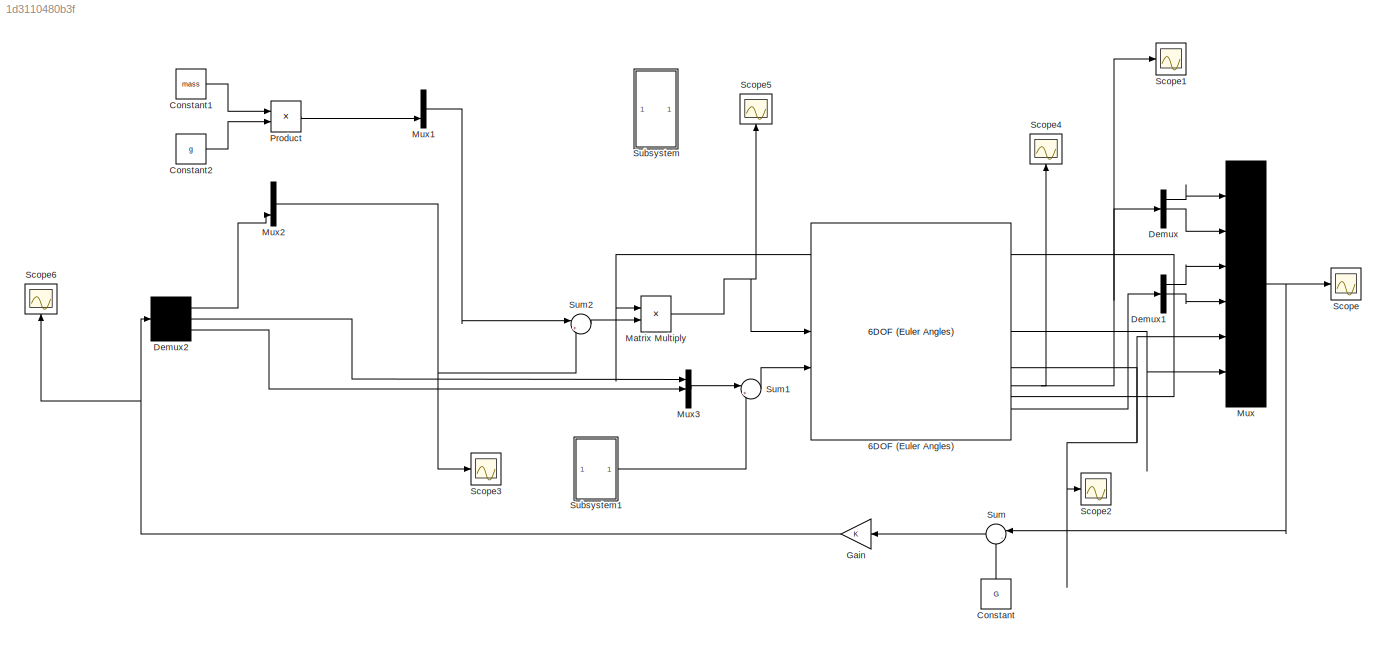
MODEL slx_1d3110480b3f
KIND model
CONFIG AbsTol = auto
CONFIG EnableMultiTasking = off
CONFIG FixedStep = auto
CONFIG MaxStep = auto
CONFIG MinStep = auto
CONFIG RelTol = 1e-3
CONFIG SampleTimeConstraint = Unconstrained
CONFIG SolverName = VariableStepAuto
CONFIG StartTime = 0.0
CONFIG StopTime = 60
BLOCK [Reference] 6DOF (Euler Angles)  REF=shared6dof/6DOF (Euler Angles)
  LibrarySourceBlock = aerolib6dof2/6DOF (Euler Angles)
  SourceBlock = shared6dof/6DOF (Euler Angles)
  SourceType = 6DOF EoM (Body Axis)
BLOCK [Constant] Constant
  NameLocation = right
  Value = G
BLOCK [Constant] Constant1
  Value = mass
BLOCK [Constant] Constant2
  Value = g
BLOCK [Demux] Demux
  Outputs = 3
BLOCK [Demux] Demux1
  Outputs = 3
BLOCK [Demux] Demux2
  Outputs = 3
BLOCK [Gain] Gain
  Gain = K
  Multiplication = Matrix(K*u)
  NameLocation = top
BLOCK [Product] Matrix Multiply
  Multiplication = Matrix(*)
BLOCK [Mux] Mux
  DisplayOption = bar
  Inputs = 6
BLOCK [Mux] Mux1
  DisplayOption = bar
  Inputs = 3
BLOCK [Mux] Mux2
  DisplayOption = bar
  Inputs = 3
BLOCK [Mux] Mux3
  DisplayOption = bar
  Inputs = 3
BLOCK [Product] Product
BLOCK [Scope] Scope
  Floating = off
  NumInputPorts = 1
  ScopeSpecificationString = Simulink.scopes.TimeScopeBlockCfg('CurrentConfiguration', extmgr.ConfigurationSet(extmgr.Configuration('Core','General UI',true),extmgr.Configuration('Core','Source UI',true),extmgr.Configuration('Sources','WiredSimulink',true),extmgr.Configuration('Visuals','Time Domain',true,'SerializedDisplays',{struct('MinYLimReal','-1.88035','MaxYLimReal','2.11769','YLabelReal','','MinYLimMag','0.00000','MaxY...<+1802ch>
BLOCK [Scope] Scope1
  Floating = off
  NumInputPorts = 1
  ScopeSpecificationString = Simulink.scopes.TimeScopeBlockCfg('CurrentConfiguration', extmgr.ConfigurationSet(extmgr.Configuration('Core','General UI',true),extmgr.Configuration('Core','Source UI',true),extmgr.Configuration('Sources','WiredSimulink',true,'DataLoggingVariableName','ScopeData1'),extmgr.Configuration('Visuals','Time Domain',true,'SerializedDisplays',{struct('MinYLimReal','-0.10563','MaxYLimReal','0.13734','YLab...<+1556ch>
BLOCK [Scope] Scope2
  Floating = off
  NumInputPorts = 1
  ScopeSpecificationString = Simulink.scopes.TimeScopeBlockCfg('CurrentConfiguration', extmgr.ConfigurationSet(extmgr.Configuration('Core','General UI',true),extmgr.Configuration('Core','Source UI',true),extmgr.Configuration('Sources','WiredSimulink',true,'DataLoggingVariableName','ScopeData1'),extmgr.Configuration('Visuals','Time Domain',true,'SerializedDisplays',{struct('MinYLimReal','-1.25','MaxYLimReal','11.25','YLabelRea...<+1560ch>
BLOCK [Scope] Scope3
  Floating = off
  NumInputPorts = 1
  ScopeSpecificationString = Simulink.scopes.TimeScopeBlockCfg('CurrentConfiguration', extmgr.ConfigurationSet(extmgr.Configuration('Core','General UI',true),extmgr.Configuration('Core','Source UI',true),extmgr.Configuration('Sources','WiredSimulink',true,'DataLoggingVariableName','ScopeData2'),extmgr.Configuration('Visuals','Time Domain',true,'SerializedDisplays',{struct('MinYLimReal','-0.90776','MaxYLimReal','8.16984','YLab...<+1466ch>
BLOCK [Scope] Scope4
  Floating = off
  NameLocation = right
  NumInputPorts = 1
  ScopeSpecificationString = Simulink.scopes.TimeScopeBlockCfg('CurrentConfiguration', extmgr.ConfigurationSet(extmgr.Configuration('Core','General UI',true),extmgr.Configuration('Core','Source UI',true),extmgr.Configuration('Sources','WiredSimulink',true,'DataLoggingVariableName','ScopeData3'),extmgr.Configuration('Visuals','Time Domain',true,'SerializedDisplays',{struct('MinYLimReal','-0.10563','MaxYLimReal','0.13734','YLab...<+1532ch>
BLOCK [Scope] Scope5
  Floating = off
  NameLocation = right
  NumInputPorts = 1
  ScopeSpecificationString = Simulink.scopes.TimeScopeBlockCfg('CurrentConfiguration', extmgr.ConfigurationSet(extmgr.Configuration('Core','General UI',true),extmgr.Configuration('Core','Source UI',true),extmgr.Configuration('Sources','WiredSimulink',true,'DataLoggingVariableName','ScopeData4'),extmgr.Configuration('Visuals','Time Domain',true,'SerializedDisplays',{struct('MinYLimReal','-0.00922','MaxYLimReal','0.00346','YLab...<+1464ch>
BLOCK [Scope] Scope6
  Floating = off
  NameLocation = right
  NumInputPorts = 1
  ScopeSpecificationString = Simulink.scopes.TimeScopeBlockCfg('CurrentConfiguration', extmgr.ConfigurationSet(extmgr.Configuration('Core','General UI',true),extmgr.Configuration('Core','Source UI',true),extmgr.Configuration('Sources','WiredSimulink',true,'DataLoggingVariableName','ScopeData5'),extmgr.Configuration('Visuals','Time Domain',true,'SerializedDisplays',{struct('MinYLimReal','-8.12187','MaxYLimReal','2.73576','YLab...<+1437ch>
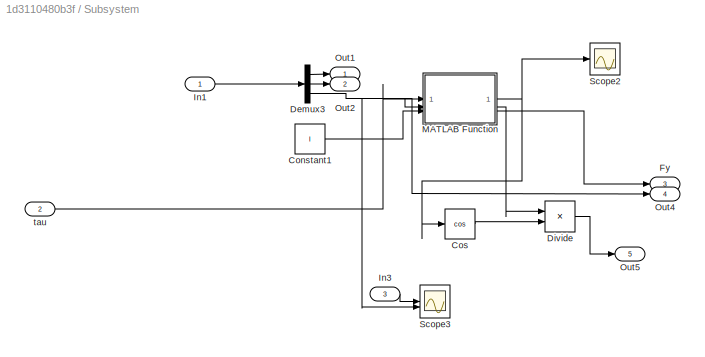
BLOCK [SubSystem] Subsystem
BLOCK [Constant] Subsystem/Constant1
  Value = l
BLOCK [Trigonometry] Subsystem/Cos
  Operator = cos
BLOCK [Demux] Subsystem/Demux3
  Outputs = 3
BLOCK [Product] Subsystem/Divide
  Inputs = */
BLOCK [Outport] Subsystem/Fy
  Port = 3
BLOCK [Inport] Subsystem/In1
BLOCK [Inport] Subsystem/In3
  Port = 3
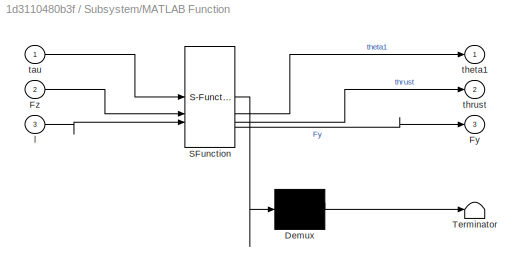
BLOCK [SubSystem] Subsystem/MATLAB Function
  ErrorFcn = Stateflow.Translate.translate
  PermitHierarchicalResolution = ExplicitOnly
  SFBlockType = MATLAB Function
  TreatAsAtomicUnit = on
BLOCK [Demux] Subsystem/MATLAB Function/ Demux 
  Outputs = 1
BLOCK [S-Function] Subsystem/MATLAB Function/ SFunction 
  EnableBusSupport = on
  FunctionName = sf_sfun
  PortCounts = [3 4]
  SFcnIsStateOwnerBlock = off
  SFunctionDeploymentMode = off
  Tag = Stateflow S-Function 2
BLOCK [Terminator] Subsystem/MATLAB Function/ Terminator 
BLOCK [Outport] Subsystem/MATLAB Function/Fy
  Port = 3
BLOCK [Inport] Subsystem/MATLAB Function/Fz
  Port = 2
BLOCK [Inport] Subsystem/MATLAB Function/l
  Port = 3
BLOCK [Inport] Subsystem/MATLAB Function/tau
BLOCK [Outport] Subsystem/MATLAB Function/theta1
BLOCK [Outport] Subsystem/MATLAB Function/thrust
  Port = 2
BLOCK [Outport] Subsystem/Out1
BLOCK [Outport] Subsystem/Out2
  Port = 2
BLOCK [Outport] Subsystem/Out4
  Port = 4
BLOCK [Outport] Subsystem/Out5
  Port = 5
BLOCK [Scope] Subsystem/Scope2
  Floating = off
  NumInputPorts = 1
  ScopeSpecificationString = Simulink.scopes.TimeScopeBlockCfg('CurrentConfiguration', extmgr.ConfigurationSet(extmgr.Configuration('Core','General UI',true),extmgr.Configuration('Core','Source UI',true),extmgr.Configuration('Sources','WiredSimulink',true,'DataLoggingVariableName','ScopeData1'),extmgr.Configuration('Visuals','Time Domain',true,'SerializedDisplays',{struct('MinYLimReal','-1.50725','MaxYLimReal','-1.48115','YLa...<+1412ch>
BLOCK [Scope] Subsystem/Scope3
  Floating = off
  NumInputPorts = 2
  ScopeSpecificationString = Simulink.scopes.TimeScopeBlockCfg('CurrentConfiguration', extmgr.ConfigurationSet(extmgr.Configuration('Core','General UI',true),extmgr.Configuration('Core','Source UI',true),extmgr.Configuration('Sources','WiredSimulink',true,'DataLoggingVariableName','ScopeData2'),extmgr.Configuration('Visuals','Time Domain',true,'SerializedDisplays',{struct('MinYLimReal','-1.00000','MaxYLimReal','1.00000','YLab...<+1501ch>
BLOCK [Inport] Subsystem/tau
  Port = 2
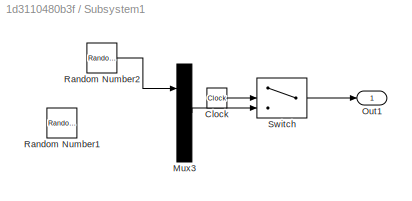
BLOCK [SubSystem] Subsystem1
BLOCK [Clock] Subsystem1/Clock
BLOCK [Mux] Subsystem1/Mux3
  DisplayOption = bar
  Inputs = 3
BLOCK [Outport] Subsystem1/Out1
BLOCK [RandomNumber] Subsystem1/Random Number1
  SampleTime = 1
  Variance = V
BLOCK [RandomNumber] Subsystem1/Random Number2
  SampleTime = 1
  Variance = V
BLOCK [Switch] Subsystem1/Switch
  Criteria = u2 > Threshold
  InputSameDT = off
  SaturateOnIntegerOverflow = off
  Threshold = 10
BLOCK [Sum] Sum
  Inputs = |-+
  NameLocation = top
BLOCK [Sum] Sum1
  Inputs = |++
BLOCK [Sum] Sum2
  Inputs = |++
LINE 6DOF (Euler Angles):1 -> Mux:6
NET 6DOF (Euler Angles):2 -> Mux:5, Scope2:1
NET 6DOF (Euler Angles):3 -> Demux:1, Scope1:1, Scope4:1
LINE 6DOF (Euler Angles):4 -> Matrix Multiply:1
LINE 6DOF (Euler Angles):6 -> Demux1:1
LINE Constant1:1 -> Product:1
LINE Constant2:1 -> Product:2
LINE Constant:1 -> Sum:2
LINE Demux1:1 -> Mux:3
LINE Demux1:2 -> Mux:4
LINE Demux2:1 -> Mux2:3
LINE Demux2:2 -> Mux3:1
LINE Demux2:3 -> Mux3:2
LINE Demux:1 -> Mux:1
LINE Demux:2 -> Mux:2
NET Gain:1 -> Demux2:1, Scope6:1
NET Matrix Multiply:1 -> 6DOF (Euler Angles):1, Scope5:1
LINE Mux1:1 -> Sum2:1
NET Mux2:1 -> Scope3:1, Sum2:2
LINE Mux3:1 -> Sum1:1
NET Mux:1 -> Scope:1, Sum:1
LINE Product:1 -> Mux1:3
LINE Subsystem/Constant1:1 -> Subsystem/MATLAB Function:3
LINE Subsystem/Cos:1 -> Subsystem/Divide:2
LINE Subsystem/Demux3:1 -> Subsystem/Out1:1
LINE Subsystem/Demux3:2 -> Subsystem/Out2:1
NET Subsystem/Demux3:3 -> Subsystem/MATLAB Function:2, Subsystem/Out4:1, Subsystem/Scope3:2
LINE Subsystem/Divide:1 -> Subsystem/Out5:1
LINE Subsystem/In1:1 -> Subsystem/Demux3:1
LINE Subsystem/In3:1 -> Subsystem/Scope3:1
NET Subsystem/MATLAB Function:1 -> Subsystem/Cos:1, Subsystem/Scope2:1
LINE Subsystem/MATLAB Function:2 -> Subsystem/Divide:1
LINE Subsystem/MATLAB Function:3 -> Subsystem/Fy:1
LINE Subsystem/tau:1 -> Subsystem/MATLAB Function:1
LINE Subsystem1/Clock:1 -> Subsystem1/Switch:2
LINE Subsystem1/Mux3:1 -> Subsystem1/Switch:3
LINE Subsystem1/Random Number2:1 -> Subsystem1/Mux3:1
LINE Subsystem1/Switch:1 -> Subsystem1/Out1:1
LINE Subsystem1:1 -> Sum1:2
LINE Sum1:1 -> 6DOF (Euler Angles):2
LINE Sum2:1 -> Matrix Multiply:2
LINE Sum:1 -> Gain:1
note: NET lines group one-source signal fan-out (src -> all destinations, sorted); 1:1 wires keep LINE
CHART Subsystem/MATLAB Function states=1 transitions=1
  STATE_LABEL 'eML_blk_kernel()'
  STATE_LABEL 'SCRIPT:\nfunction [theta1,thrust,Fy] = fcn(tau,Fz,l)\n\n\ntheta1= atan(tau/(Fz*l));\n\nthrust = Fz/cos(theta1);\n\nFy = thrust*sin(theta1);\n'
CHART  states=0 transitions=0
